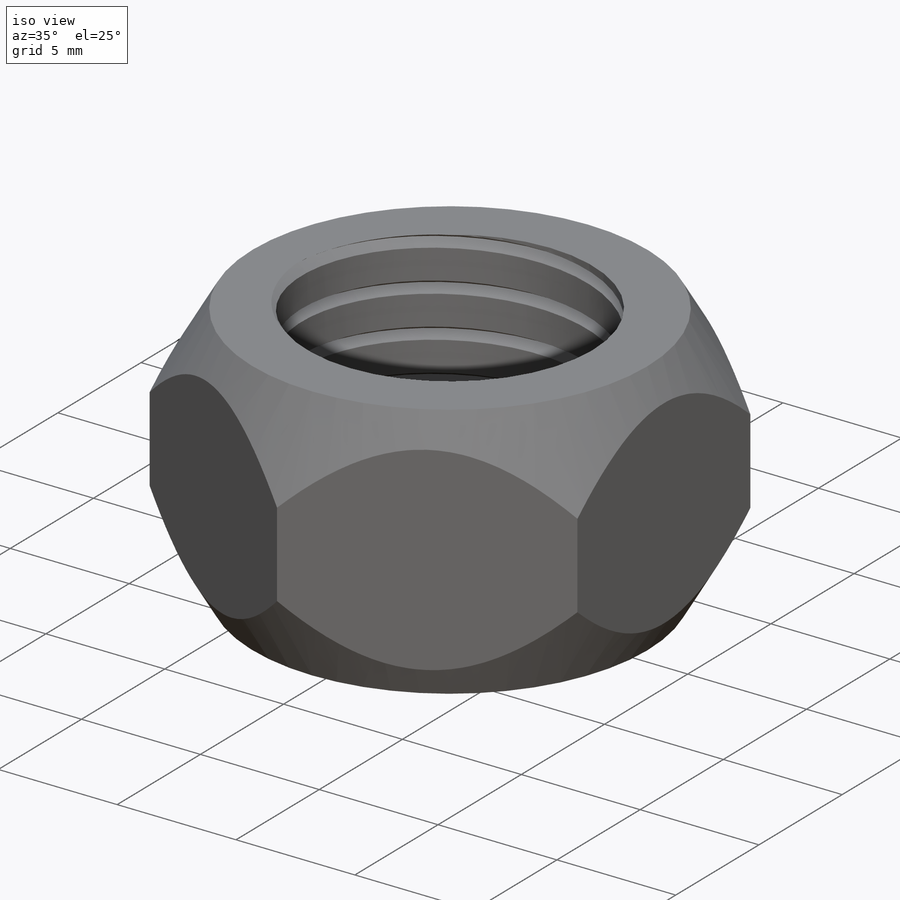
[diagram: iso view]
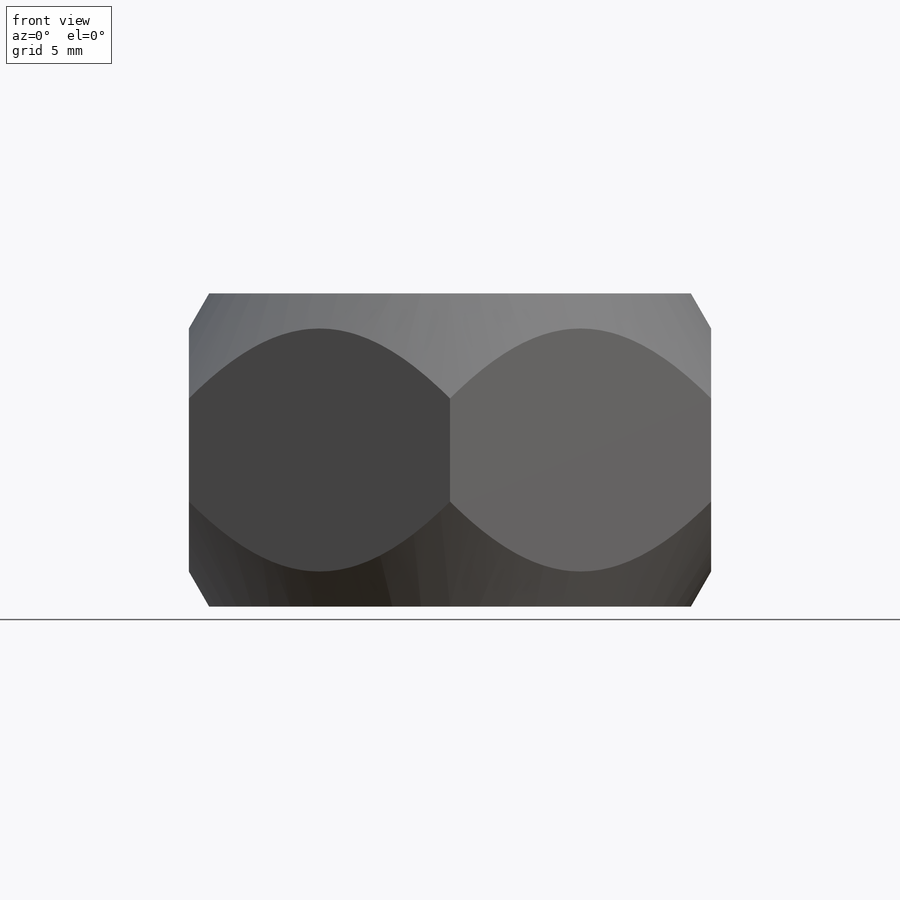
[diagram: front view]
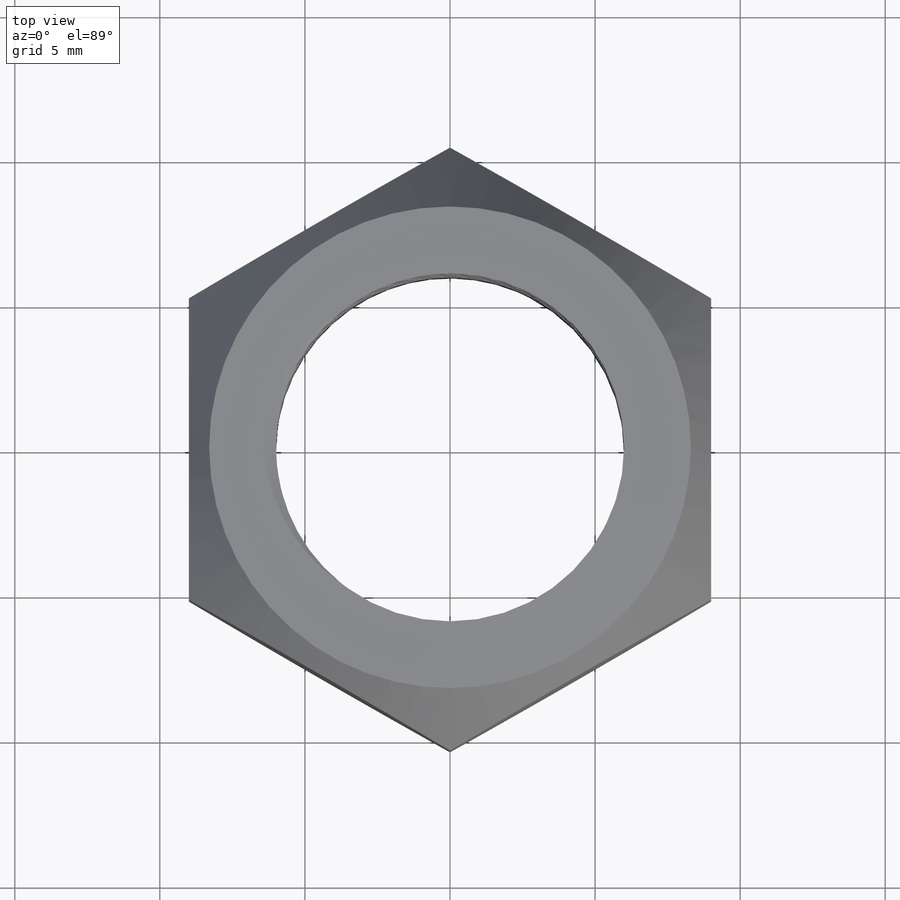
[diagram: top view]
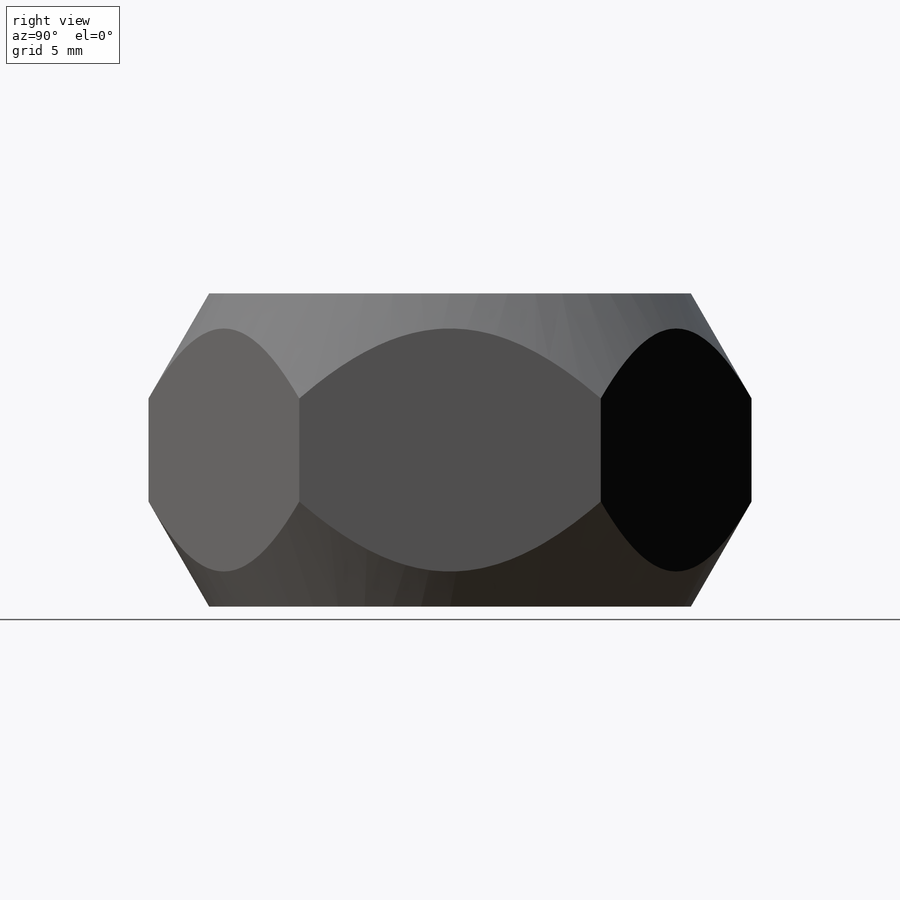
[diagram: right view]
SOLIDWORKS PART (.sldprt)
format: sldprt  version: not decoded by parser v0  size: 319,488 bytes
history: native  units: mm
features: sketch x5, cut_extrude x2, material x1, extrude x1, mirror x1, helix x1, sweep x1 (+11 scaffold rows collapsed)
feature tree (23):
  scaffold x11  (default folders/planes/origin — collapsed)
  material  "Material <not specified>"
  sketch  "Sketch1"  dims[D1=18.0mm D2=~20.78461mm]
  extrude  "Boss-Extrude1"  Depth=10.8mm
  sketch  "Sketch2"  dims[D1=16.6mm]
  cut_extrude  "Cut-Extrude1"  Depth=10.8mm
  mirror  "Mirror1"
  sketch  "Sketch3"  dims[D1=12.0mm]
  cut_extrude  "Cut-Extrude2"  [1 undecoded]
  sketch  "Sketch4"  dims[D1=0.0mm]
  helix  "Helix/Spiral1"  Pitch=10.8mm
  sketch  "Sketch5"  dims[D1=0.5mm]
  sweep  "Cut-Sweep1"
decode coverage: 8 of 11 modeling features carry decoded parameters
note: ~ marks probable driven/reference dimensions
note: 1 parameter value undecoded
note: suppression state not decoded; provenance and decode notes live in map.json
